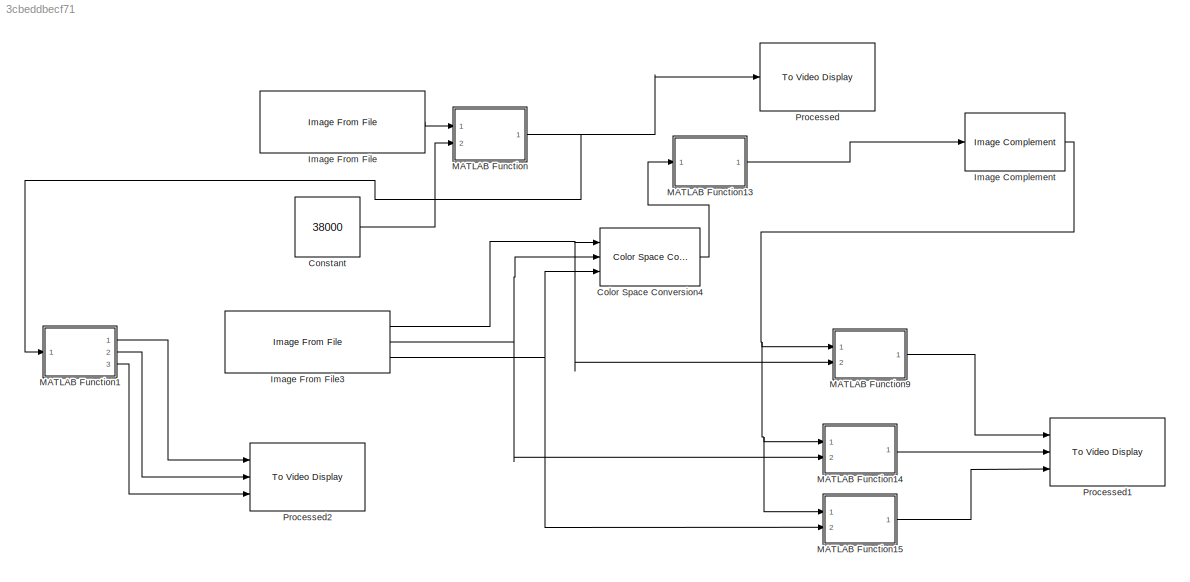
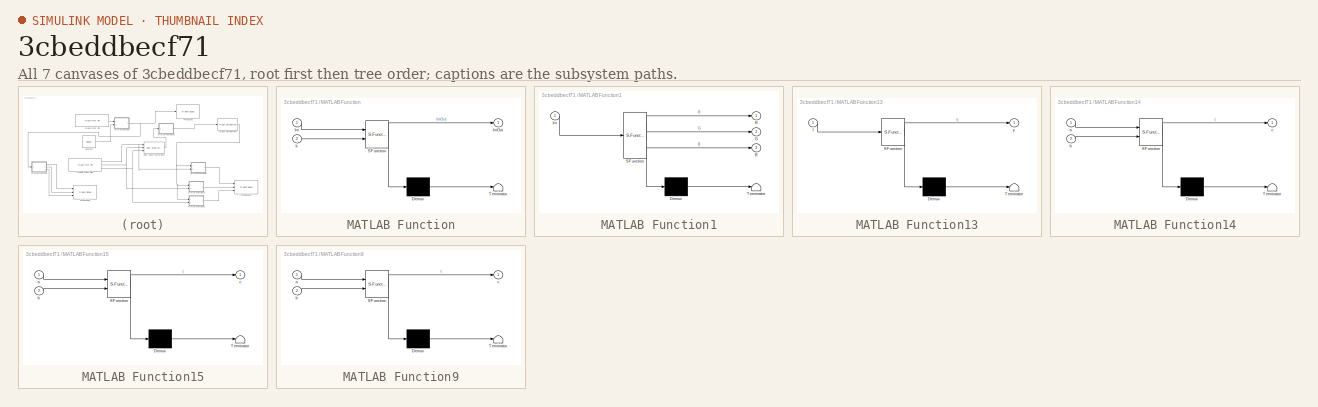
[diagram: thumbnail index - all 7 canvases of the model, root first then tree order]
MODEL slx_3cbeddbecf71
KIND model
CONFIG AbsTol = auto
CONFIG FixedStep = auto
CONFIG MaxStep = auto
CONFIG MinStep = auto
CONFIG RelTol = 1e-3
CONFIG SampleTimeConstraint = Unconstrained
CONFIG Solver = VariableStepAuto
CONFIG SolverMode = Auto
CONFIG SolverName = VariableStepAuto
CONFIG StartTime = 0.0
CONFIG StopTime = 10.0
BLOCK [Reference] Color Space Conversion4  REF=visionconversions/Color Space
 Conversion
  Ports = [3, 1]
  SourceBlock = visionconversions/Color Space\n Conversion
  SourceType = Color Space Conversion
BLOCK [Constant] Constant
  OutDataTypeStr = uint32
  SampleTime = 100000
  Value = 38000
BLOCK [Reference] Image Complement  REF=visionconversions/Image Complement
  Ports = [1, 1]
  SourceBlock = visionconversions/Image Complement
  SourceType = Image Complement
BLOCK [Reference] Image From File  REF=visionsources/Image From File
  Ports = [0, 1]
  SourceBlock = visionsources/Image From File
  SourceType = Image From File
  Tag = vipblks_nd
BLOCK [Reference] Image From File3  REF=visionsources/Image From File
  Ports = [0, 3]
  SourceBlock = visionsources/Image From File
  SourceType = Image From File
  Tag = vipblks_nd
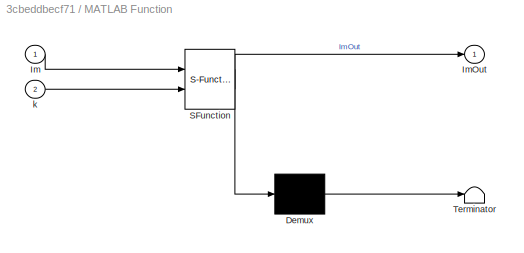
BLOCK [SubSystem] MATLAB Function
  ErrorFcn = Stateflow.Translate.translate
  PermitHierarchicalResolution = ExplicitOnly
  Ports = [2, 1]
  RequestExecContextInheritance = off
  SFBlockType = MATLAB Function
  TreatAsAtomicUnit = on
  Variant = off
BLOCK [Demux] MATLAB Function/ Demux 
  Outputs = 1
  Ports = [1, 1]
BLOCK [S-Function] MATLAB Function/ SFunction 
  EnableBusSupport = on
  FunctionName = sf_sfun
  PortCounts = [2 2]
  Ports = [2, 2]
  SFunctionDeploymentMode = off
  Tag = Stateflow S-Function ObjectPixelCount 2
BLOCK [Terminator] MATLAB Function/ Terminator 
BLOCK [Inport] MATLAB Function/Im
  IconDisplay = Port number
BLOCK [Outport] MATLAB Function/ImOut
  IconDisplay = Port number
BLOCK [Inport] MATLAB Function/k
  IconDisplay = Port number
  Port = 2
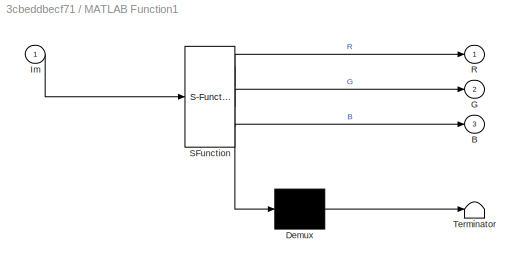
BLOCK [SubSystem] MATLAB Function1
  ErrorFcn = Stateflow.Translate.translate
  PermitHierarchicalResolution = ExplicitOnly
  Ports = [1, 3]
  RequestExecContextInheritance = off
  SFBlockType = MATLAB Function
  TreatAsAtomicUnit = on
  Variant = off
BLOCK [Demux] MATLAB Function1/ Demux 
  Outputs = 1
  Ports = [1, 1]
BLOCK [S-Function] MATLAB Function1/ SFunction 
  EnableBusSupport = on
  FunctionName = sf_sfun
  PortCounts = [1 4]
  Ports = [1, 4]
  SFunctionDeploymentMode = off
  Tag = Stateflow S-Function ObjectPixelCount 12
BLOCK [Terminator] MATLAB Function1/ Terminator 
BLOCK [Outport] MATLAB Function1/B
  IconDisplay = Port number
  Port = 3
BLOCK [Outport] MATLAB Function1/G
  IconDisplay = Port number
  Port = 2
BLOCK [Inport] MATLAB Function1/Im
  IconDisplay = Port number
BLOCK [Outport] MATLAB Function1/R
  IconDisplay = Port number
BLOCK [SubSystem] MATLAB Function13
  ErrorFcn = Stateflow.Translate.translate
  PermitHierarchicalResolution = ExplicitOnly
  Ports = [1, 1]
  RequestExecContextInheritance = off
  SFBlockType = MATLAB Function
  TreatAsAtomicUnit = on
  Variant = off
BLOCK [Demux] MATLAB Function13/ Demux 
  Outputs = 1
  Ports = [1, 1]
BLOCK [S-Function] MATLAB Function13/ SFunction 
  EnableBusSupport = on
  FunctionName = sf_sfun
  PortCounts = [1 2]
  Ports = [1, 2]
  SFunctionDeploymentMode = off
  Tag = Stateflow S-Function ObjectPixelCount 14
BLOCK [Terminator] MATLAB Function13/ Terminator 
BLOCK [Inport] MATLAB Function13/I
  IconDisplay = Port number
BLOCK [Outport] MATLAB Function13/y
  IconDisplay = Port number
BLOCK [SubSystem] MATLAB Function14
  ErrorFcn = Stateflow.Translate.translate
  PermitHierarchicalResolution = ExplicitOnly
  Ports = [2, 1]
  RequestExecContextInheritance = off
  SFBlockType = MATLAB Function
  TreatAsAtomicUnit = on
  Variant = off
BLOCK [Demux] MATLAB Function14/ Demux 
  Outputs = 1
  Ports = [1, 1]
BLOCK [S-Function] MATLAB Function14/ SFunction 
  EnableBusSupport = on
  FunctionName = sf_sfun
  PortCounts = [2 2]
  Ports = [2, 2]
  SFunctionDeploymentMode = off
  Tag = Stateflow S-Function ObjectPixelCount 10
BLOCK [Terminator] MATLAB Function14/ Terminator 
BLOCK [Inport] MATLAB Function14/a
  IconDisplay = Port number
BLOCK [Inport] MATLAB Function14/b
  IconDisplay = Port number
  Port = 2
BLOCK [Outport] MATLAB Function14/c
  IconDisplay = Port number
BLOCK [SubSystem] MATLAB Function15
  ErrorFcn = Stateflow.Translate.translate
  PermitHierarchicalResolution = ExplicitOnly
  Ports = [2, 1]
  RequestExecContextInheritance = off
  SFBlockType = MATLAB Function
  TreatAsAtomicUnit = on
  Variant = off
BLOCK [Demux] MATLAB Function15/ Demux 
  Outputs = 1
  Ports = [1, 1]
BLOCK [S-Function] MATLAB Function15/ SFunction 
  EnableBusSupport = on
  FunctionName = sf_sfun
  PortCounts = [2 2]
  Ports = [2, 2]
  SFunctionDeploymentMode = off
  Tag = Stateflow S-Function ObjectPixelCount 15
BLOCK [Terminator] MATLAB Function15/ Terminator 
BLOCK [Inport] MATLAB Function15/a
  IconDisplay = Port number
BLOCK [Inport] MATLAB Function15/b
  IconDisplay = Port number
  Port = 2
BLOCK [Outport] MATLAB Function15/c
  IconDisplay = Port number
BLOCK [SubSystem] MATLAB Function9
  ErrorFcn = Stateflow.Translate.translate
  PermitHierarchicalResolution = ExplicitOnly
  Ports = [2, 1]
  RequestExecContextInheritance = off
  SFBlockType = MATLAB Function
  TreatAsAtomicUnit = on
  Variant = off
BLOCK [Demux] MATLAB Function9/ Demux 
  Outputs = 1
  Ports = [1, 1]
BLOCK [S-Function] MATLAB Function9/ SFunction 
  EnableBusSupport = on
  FunctionName = sf_sfun
  PortCounts = [2 2]
  Ports = [2, 2]
  SFunctionDeploymentMode = off
  Tag = Stateflow S-Function ObjectPixelCount 16
BLOCK [Terminator] MATLAB Function9/ Terminator 
BLOCK [Inport] MATLAB Function9/a
  IconDisplay = Port number
BLOCK [Inport] MATLAB Function9/b
  IconDisplay = Port number
  Port = 2
BLOCK [Outport] MATLAB Function9/c
  IconDisplay = Port number
BLOCK [Reference] Processed  REF=visionsinks/To Video Display
  Ports = [1]
  SourceBlock = visionsinks/To Video Display
  SourceType = To Video Display
BLOCK [Reference] Processed1  REF=visionsinks/To Video Display
  Ports = [3]
  SourceBlock = visionsinks/To Video Display
  SourceType = To Video Display
BLOCK [Reference] Processed2  REF=visionsinks/To Video Display
  Ports = [3]
  SourceBlock = visionsinks/To Video Display
  SourceType = To Video Display
LINE Color Space Conversion4:1 -> MATLAB Function13:1
LINE Constant:1 -> MATLAB Function:2
NET Image Complement:1 -> MATLAB Function14:1, MATLAB Function15:1, MATLAB Function9:1
NET Image From File3:1 -> Color Space Conversion4:1, MATLAB Function9:2
NET Image From File3:2 -> Color Space Conversion4:2, MATLAB Function14:2
NET Image From File3:3 -> Color Space Conversion4:3, MATLAB Function15:2
LINE Image From File:1 -> MATLAB Function:1
LINE MATLAB Function13:1 -> Image Complement:1
LINE MATLAB Function14:1 -> Processed1:2
LINE MATLAB Function15:1 -> Processed1:3
LINE MATLAB Function1:1 -> Processed2:1
LINE MATLAB Function1:2 -> Processed2:2
LINE MATLAB Function1:3 -> Processed2:3
LINE MATLAB Function9:1 -> Processed1:1
NET MATLAB Function:1 -> MATLAB Function1:1, Processed:1
note: NET lines group one-source signal fan-out (src -> all destinations, sorted); 1:1 wires keep LINE
CHART MATLAB Function states=1 transitions=1
  STATE_LABEL 'eML_blk_kernel()'
  STATE_LABEL "SCRIPT:\nfunction ImOut = fcn(Im,k)\nI=rgb2gray(Im);\ncoder.extrinsic('graythresh');\ncoder.extrinsic('im2bw');\nlevel = graythresh(I);\nBW = im2bw(I,level);\nL=double(I);\ncoder.extrinsic('bwlabeln');\nNUM=1;\nBW2=imcomplement(BW);\n[L, NUM] = bwlabeln(BW2);\narea=1;\nn=1;\nR1=Im(:,:,1);\nR2=Im(:,:,1);\nR3=Im(:,:,1);\nAA=1;\n\nfor n=1:NUM\n    [r, c] = find(L==n);\n    if (length(r)>1000) && (length(c)>1000)\n        ...<+195ch>"
CHART MATLAB Function14 states=1 transitions=1
  STATE_LABEL 'eML_blk_kernel()'
  STATE_LABEL 'SCRIPT:\nfunction c = fcn(a,b)\n%#codegen\nc=a.*b;\nreturn'
CHART MATLAB Function1 states=1 transitions=1
  STATE_LABEL 'eML_blk_kernel()'
  STATE_LABEL 'SCRIPT:\nfunction [R,G,B] = fcn(Im)\n\nR=double(Im(:,:,1));\nG=double(Im(:,:,2));\nB=double(Im(:,:,3));\n'
CHART MATLAB Function13 states=1 transitions=1
  STATE_LABEL 'eML_blk_kernel()'
  STATE_LABEL "SCRIPT:\nfunction y = fcn(I)\n%#codegen\ny=I;\n coder.extrinsic('graythresh');\nlevel = graythresh(I);\nBW = double(im2bw(I,level));\ny = BW;"
CHART MATLAB Function15 states=1 transitions=1
  STATE_LABEL 'eML_blk_kernel()'
  STATE_LABEL 'SCRIPT:\nfunction c = fcn(a,b)\n%#codegen\nc=a.*b;\nreturn'
CHART MATLAB Function9 states=1 transitions=1
  STATE_LABEL 'eML_blk_kernel()'
  STATE_LABEL 'SCRIPT:\nfunction c = fcn(a,b)\n%#codegen\nc=a.*b;\nreturn'
